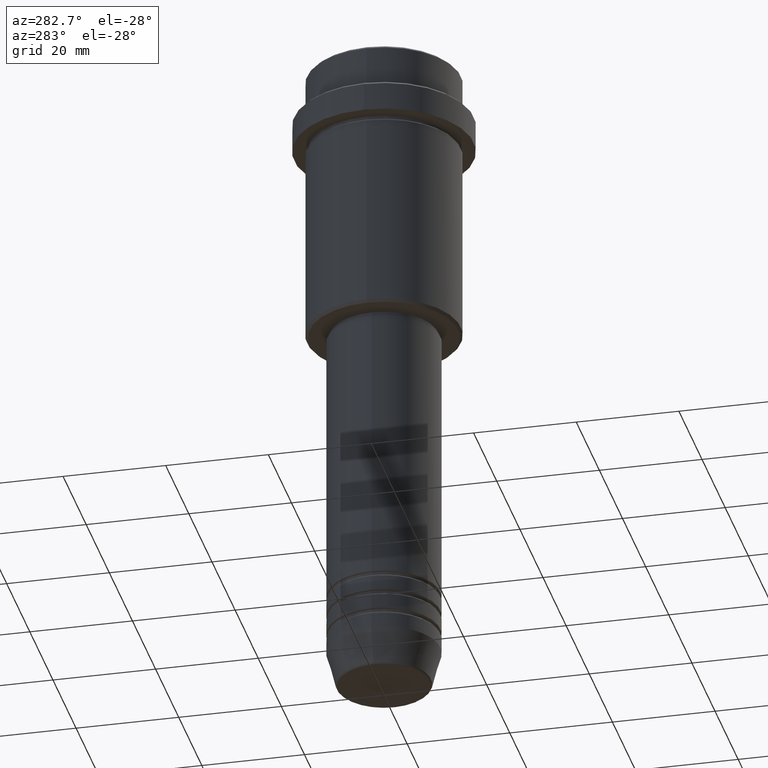
[diagram: clean part render]
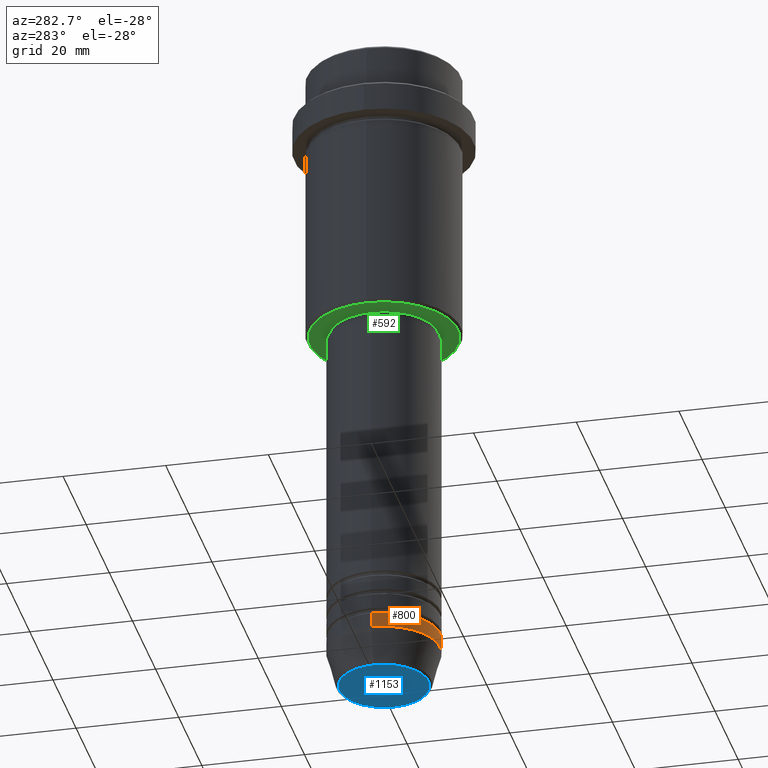
[diagram: same view with three faces highlighted in distinct colors, each labeled with its STEP entity id]
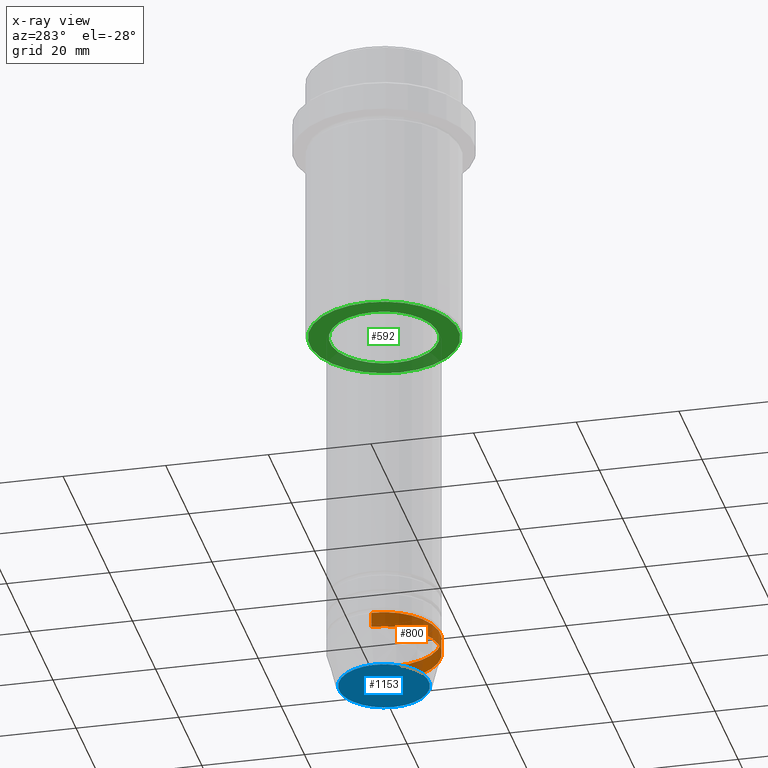
[diagram: x-ray of the same camera — body ghosted, the three highlighted faces saturated]
A machine part, auxiliary view with three faces highlighted in distinct colors.
The next image is the same camera in x-ray (body ghosted, the three faces saturated) — at least one of them is partly hidden behind the body in this view.
Their STEP definitions:

[orange] entity #800 — the highlighted cylindrical surface (partial cylindrical patch) has radius 11 mm, axis along (-0, -0, 1).
#63 = AXIS2_PLACEMENT_3D ( 'NONE', #585, #675, #1231 ) ;
#118 = CARTESIAN_POINT ( 'NONE',  ( 11.00000000000000000, 0.000000000000000000, 0.000000000000000000 ) ) ;
#130 = AXIS2_PLACEMENT_3D ( 'NONE', #1378, #390, #273 ) ;
#131 = CARTESIAN_POINT ( 'NONE',  ( -11.00000000000000000, 1.347111479062088405E-15, 0.000000000000000000 ) ) ;
#150 = EDGE_LOOP ( 'NONE', ( #389, #1295, #1082, #514 ) ) ;
#235 = CARTESIAN_POINT ( 'NONE',  ( -11.00000000000000000, 1.347111479062088405E-15, -123.0000000000000000 ) ) ;
#273 = DIRECTION ( 'NONE',  ( 1.000000000000000000, 0.000000000000000000, 0.000000000000000000 ) ) ;
#349 = LINE ( 'NONE', #131, #506 ) ;
#372 = VERTEX_POINT ( 'NONE', #610 ) ;
#389 = ORIENTED_EDGE ( 'NONE', *, *, #1281, .F. ) ;
#390 = DIRECTION ( 'NONE',  ( -0.000000000000000000, -0.000000000000000000, 1.000000000000000000 ) ) ;
#395 = CIRCLE ( 'NONE', #417, 11.00000000000000000 ) ;
#417 = AXIS2_PLACEMENT_3D ( 'NONE', #886, #806, #1236 ) ;
#464 = CARTESIAN_POINT ( 'NONE',  ( 11.00000000000000000, 0.000000000000000000, -120.0000000000000000 ) ) ;
#490 = EDGE_CURVE ( 'NONE', #372, #1267, #649, .T. ) ;
#506 = VECTOR ( 'NONE', #892, 1000.000000000000000 ) ;
#514 = ORIENTED_EDGE ( 'NONE', *, *, #1394, .F. ) ;
#540 = DIRECTION ( 'NONE',  ( -0.000000000000000000, -0.000000000000000000, 1.000000000000000000 ) ) ;
#542 = VECTOR ( 'NONE', #540, 1000.000000000000000 ) ;
#585 = CARTESIAN_POINT ( 'NONE',  ( 0.000000000000000000, 0.000000000000000000, -123.0000000000000000 ) ) ;
#610 = CARTESIAN_POINT ( 'NONE',  ( 11.00000000000000000, 0.000000000000000000, -123.0000000000000000 ) ) ;
#621 = EDGE_CURVE ( 'NONE', #1360, #372, #1222, .T. ) ;
#649 = LINE ( 'NONE', #118, #542 ) ;
#675 = DIRECTION ( 'NONE',  ( -0.000000000000000000, -0.000000000000000000, 1.000000000000000000 ) ) ;
#726 = VERTEX_POINT ( 'NONE', #735 ) ;
#735 = CARTESIAN_POINT ( 'NONE',  ( -11.00000000000000000, 1.347111479062088405E-15, -120.0000000000000000 ) ) ;
#800 = ADVANCED_FACE ( 'NONE', ( #846 ), #1259, .T. ) ;
#806 = DIRECTION ( 'NONE',  ( -0.000000000000000000, -0.000000000000000000, 1.000000000000000000 ) ) ;
#846 = FACE_OUTER_BOUND ( 'NONE', #150, .T. ) ;
#886 = CARTESIAN_POINT ( 'NONE',  ( 0.000000000000000000, 0.000000000000000000, -120.0000000000000000 ) ) ;
#892 = DIRECTION ( 'NONE',  ( -0.000000000000000000, -0.000000000000000000, 1.000000000000000000 ) ) ;
#1082 = ORIENTED_EDGE ( 'NONE', *, *, #490, .T. ) ;
#1222 = CIRCLE ( 'NONE', #63, 11.00000000000000000 ) ;
#1231 = DIRECTION ( 'NONE',  ( 1.000000000000000000, 0.000000000000000000, 0.000000000000000000 ) ) ;
#1236 = DIRECTION ( 'NONE',  ( 1.000000000000000000, 0.000000000000000000, 0.000000000000000000 ) ) ;
#1259 = CYLINDRICAL_SURFACE ( 'NONE', #130, 11.00000000000000000 ) ;
#1267 = VERTEX_POINT ( 'NONE', #464 ) ;
#1281 = EDGE_CURVE ( 'NONE', #1360, #726, #349, .T. ) ;
#1295 = ORIENTED_EDGE ( 'NONE', *, *, #621, .T. ) ;
#1360 = VERTEX_POINT ( 'NONE', #235 ) ;
#1378 = CARTESIAN_POINT ( 'NONE',  ( 0.000000000000000000, 0.000000000000000000, 0.000000000000000000 ) ) ;
#1394 = EDGE_CURVE ( 'NONE', #726, #1267, #395, .T. ) ;

[blue] entity #1153 — the highlighted planar face has unit normal (0, -0, 1).
#43 = EDGE_LOOP ( 'NONE', ( #874, #1159 ) ) ;
#45 = PLANE ( 'NONE',  #457 ) ;
#139 = DIRECTION ( 'NONE',  ( 1.000000000000000000, 0.000000000000000000, 0.000000000000000000 ) ) ;
#154 = CARTESIAN_POINT ( 'NONE',  ( 0.000000000000000000, 0.000000000000000000, -130.0000000000000000 ) ) ;
#163 = CARTESIAN_POINT ( 'NONE',  ( -8.740692158992652949, 1.099999016768739259E-15, -130.0000000000000000 ) ) ;
#212 = VERTEX_POINT ( 'NONE', #1109 ) ;
#245 = AXIS2_PLACEMENT_3D ( 'NONE', #697, #807, #1121 ) ;
#250 = DIRECTION ( 'NONE',  ( 0.000000000000000000, 0.000000000000000000, -1.000000000000000000 ) ) ;
#386 = FACE_OUTER_BOUND ( 'NONE', #43, .T. ) ;
#457 = AXIS2_PLACEMENT_3D ( 'NONE', #515, #1268, #1160 ) ;
#515 = CARTESIAN_POINT ( 'NONE',  ( 0.000000000000000000, 0.000000000000000000, -130.0000000000000000 ) ) ;
#574 = EDGE_CURVE ( 'NONE', #212, #1224, #1084, .T. ) ;
#618 = AXIS2_PLACEMENT_3D ( 'NONE', #154, #250, #139 ) ;
#650 = EDGE_CURVE ( 'NONE', #1224, #212, #748, .T. ) ;
#697 = CARTESIAN_POINT ( 'NONE',  ( 0.000000000000000000, 0.000000000000000000, -130.0000000000000000 ) ) ;
#748 = CIRCLE ( 'NONE', #618, 8.740692158992652949 ) ;
#807 = DIRECTION ( 'NONE',  ( 0.000000000000000000, 0.000000000000000000, -1.000000000000000000 ) ) ;
#874 = ORIENTED_EDGE ( 'NONE', *, *, #574, .T. ) ;
#1084 = CIRCLE ( 'NONE', #245, 8.740692158992652949 ) ;
#1109 = CARTESIAN_POINT ( 'NONE',  ( 8.740692158992652949, 0.000000000000000000, -130.0000000000000000 ) ) ;
#1121 = DIRECTION ( 'NONE',  ( 1.000000000000000000, 0.000000000000000000, 0.000000000000000000 ) ) ;
#1153 = ADVANCED_FACE ( 'NONE', ( #386 ), #45, .F. ) ;
#1159 = ORIENTED_EDGE ( 'NONE', *, *, #650, .T. ) ;
#1160 = DIRECTION ( 'NONE',  ( 1.000000000000000000, 0.000000000000000000, 0.000000000000000000 ) ) ;
#1224 = VERTEX_POINT ( 'NONE', #163 ) ;
#1268 = DIRECTION ( 'NONE',  ( 0.000000000000000000, -0.000000000000000000, 1.000000000000000000 ) ) ;

[green] entity #592 — the highlighted planar face has unit normal (0, 0, -1).
#26 = CARTESIAN_POINT ( 'NONE',  ( 0.000000000000000000, 0.000000000000000000, -54.99999999999998579 ) ) ;
#28 = DIRECTION ( 'NONE',  ( 0.000000000000000000, 0.000000000000000000, -1.000000000000000000 ) ) ;
#58 = CARTESIAN_POINT ( 'NONE',  ( -14.50000000000002487, 1.806354028742347380E-15, -54.99999999999999289 ) ) ;
#98 = EDGE_CURVE ( 'NONE', #1177, #856, #564, .T. ) ;
#112 = AXIS2_PLACEMENT_3D ( 'NONE', #26, #138, #459 ) ;
#132 = CARTESIAN_POINT ( 'NONE',  ( 0.000000000000000000, 15.00000000000000000, -54.99999999999999289 ) ) ;
#136 = ORIENTED_EDGE ( 'NONE', *, *, #183, .T. ) ;
#138 = DIRECTION ( 'NONE',  ( -0.000000000000000000, -0.000000000000000000, 1.000000000000000000 ) ) ;
#153 = VERTEX_POINT ( 'NONE', #1214 ) ;
#183 = EDGE_CURVE ( 'NONE', #786, #153, #878, .T. ) ;
#200 = EDGE_CURVE ( 'NONE', #856, #1177, #614, .T. ) ;
#253 = CIRCLE ( 'NONE', #112, 10.49999999999999289 ) ;
#265 = FACE_OUTER_BOUND ( 'NONE', #1374, .T. ) ;
#275 = AXIS2_PLACEMENT_3D ( 'NONE', #132, #1324, #1337 ) ;
#362 = ORIENTED_EDGE ( 'NONE', *, *, #1321, .T. ) ;
#387 = AXIS2_PLACEMENT_3D ( 'NONE', #1331, #28, #691 ) ;
#459 = DIRECTION ( 'NONE',  ( 1.000000000000000000, 0.000000000000000000, 0.000000000000000000 ) ) ;
#460 = FACE_BOUND ( 'NONE', #902, .T. ) ;
#501 = AXIS2_PLACEMENT_3D ( 'NONE', #563, #894, #888 ) ;
#563 = CARTESIAN_POINT ( 'NONE',  ( 0.000000000000000000, 0.000000000000000000, -54.99999999999999289 ) ) ;
#564 = CIRCLE ( 'NONE', #387, 14.50000000000002487 ) ;
#592 = ADVANCED_FACE ( 'NONE', ( #265, #460 ), #1347, .T. ) ;
#614 = CIRCLE ( 'NONE', #501, 14.50000000000002487 ) ;
#691 = DIRECTION ( 'NONE',  ( -1.000000000000000000, 0.000000000000000000, 0.000000000000000000 ) ) ;
#702 = ORIENTED_EDGE ( 'NONE', *, *, #98, .T. ) ;
#786 = VERTEX_POINT ( 'NONE', #928 ) ;
#787 = DIRECTION ( 'NONE',  ( 1.000000000000000000, 0.000000000000000000, 0.000000000000000000 ) ) ;
#801 = CARTESIAN_POINT ( 'NONE',  ( 0.000000000000000000, 0.000000000000000000, -54.99999999999998579 ) ) ;
#831 = ORIENTED_EDGE ( 'NONE', *, *, #200, .T. ) ;
#856 = VERTEX_POINT ( 'NONE', #1302 ) ;
#878 = CIRCLE ( 'NONE', #993, 10.49999999999999289 ) ;
#888 = DIRECTION ( 'NONE',  ( -1.000000000000000000, 0.000000000000000000, 0.000000000000000000 ) ) ;
#894 = DIRECTION ( 'NONE',  ( 0.000000000000000000, 0.000000000000000000, -1.000000000000000000 ) ) ;
#902 = EDGE_LOOP ( 'NONE', ( #136, #362 ) ) ;
#928 = CARTESIAN_POINT ( 'NONE',  ( 10.49999999999999289, 0.000000000000000000, -54.99999999999998579 ) ) ;
#993 = AXIS2_PLACEMENT_3D ( 'NONE', #801, #1356, #787 ) ;
#1177 = VERTEX_POINT ( 'NONE', #58 ) ;
#1214 = CARTESIAN_POINT ( 'NONE',  ( -10.49999999999999289, 1.285879139104720042E-15, -54.99999999999998579 ) ) ;
#1302 = CARTESIAN_POINT ( 'NONE',  ( 14.50000000000002487, 0.000000000000000000, -54.99999999999999289 ) ) ;
#1321 = EDGE_CURVE ( 'NONE', #153, #786, #253, .T. ) ;
#1324 = DIRECTION ( 'NONE',  ( 0.000000000000000000, 0.000000000000000000, -1.000000000000000000 ) ) ;
#1331 = CARTESIAN_POINT ( 'NONE',  ( 0.000000000000000000, 0.000000000000000000, -54.99999999999999289 ) ) ;
#1337 = DIRECTION ( 'NONE',  ( -1.000000000000000000, 0.000000000000000000, -0.000000000000000000 ) ) ;
#1347 = PLANE ( 'NONE',  #275 ) ;
#1356 = DIRECTION ( 'NONE',  ( -0.000000000000000000, -0.000000000000000000, 1.000000000000000000 ) ) ;
#1374 = EDGE_LOOP ( 'NONE', ( #831, #702 ) ) ;